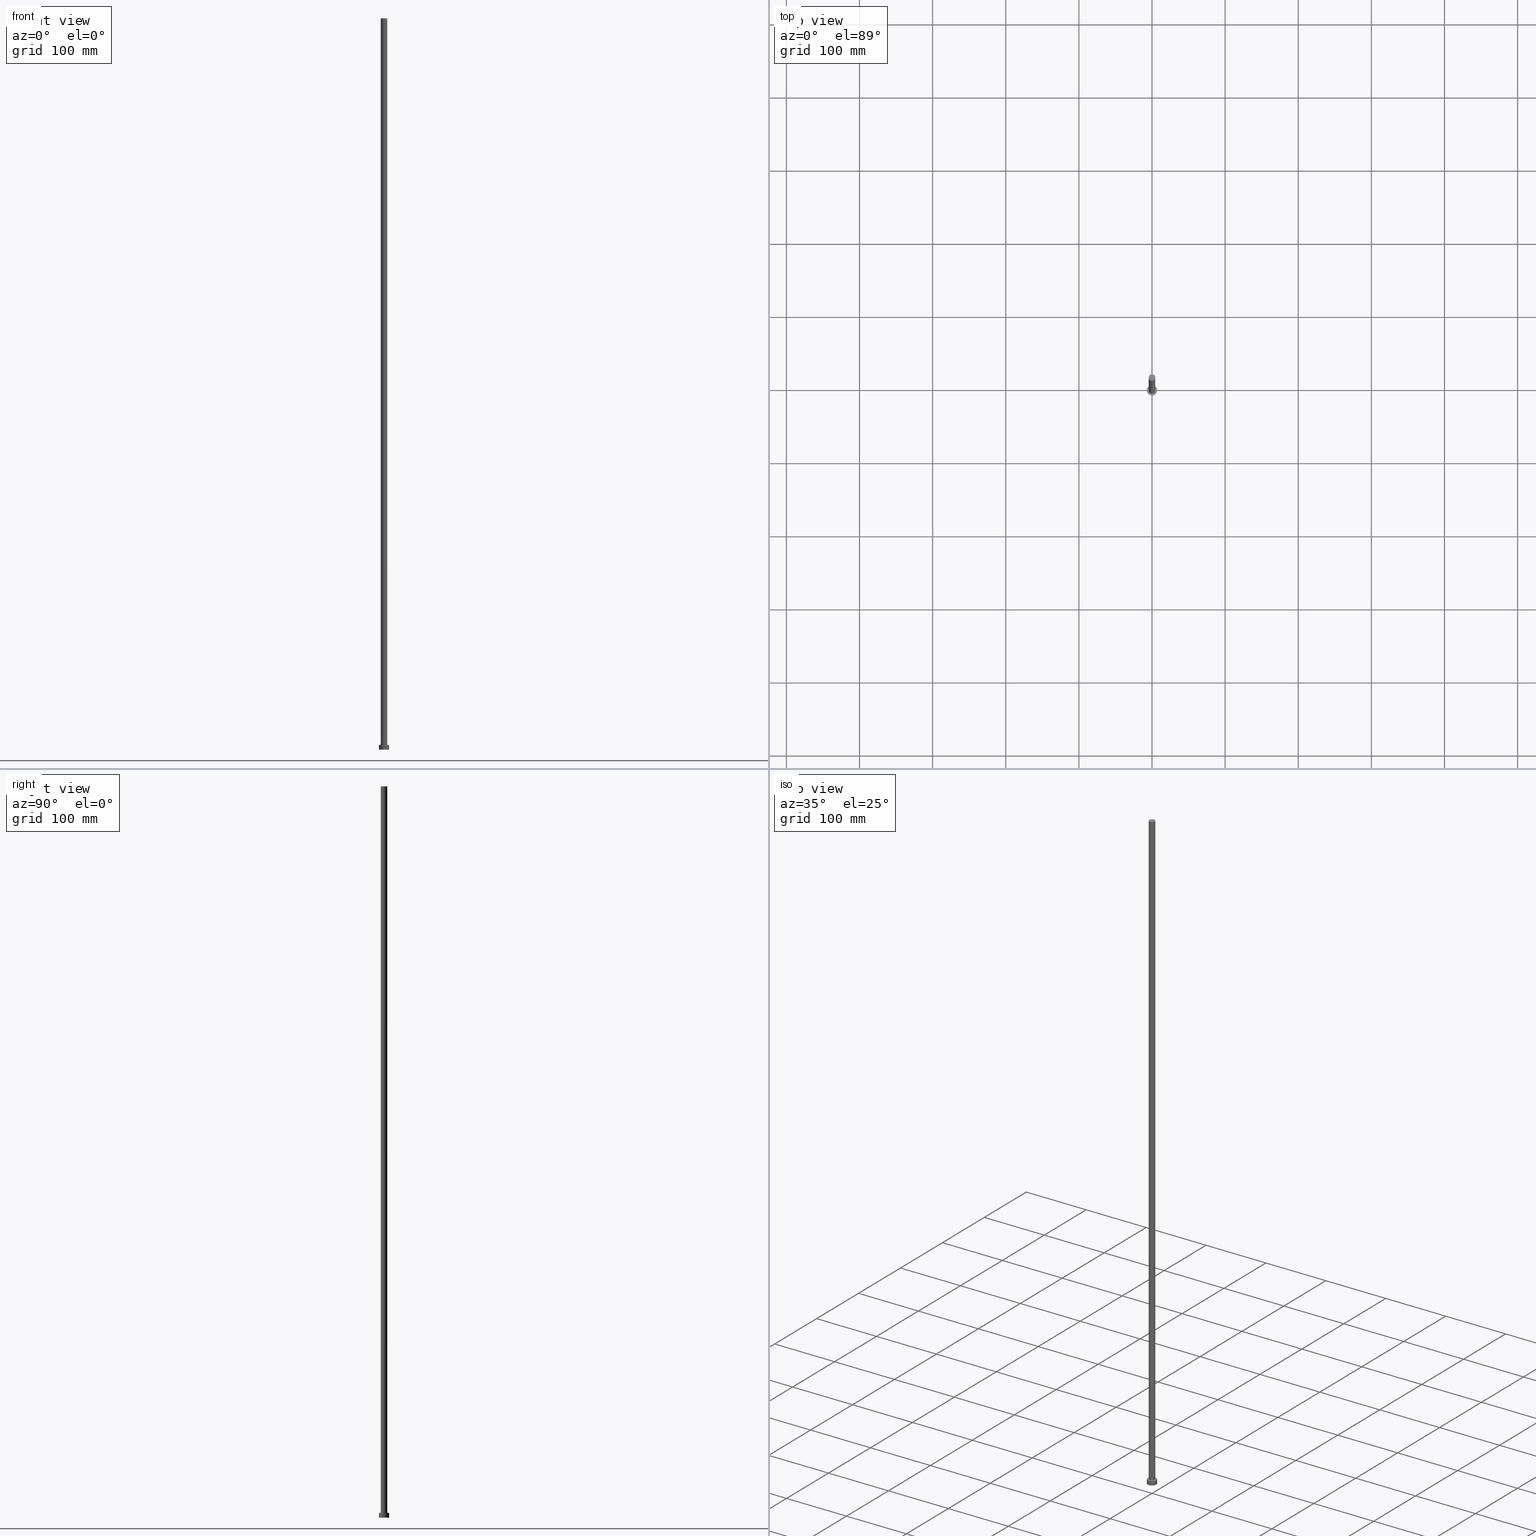
[diagram: canonical four-view strip — front | top / right | iso, engineering-drawing reading convention]
A machine part, canonical four-view strip (front | top / right | iso — engineering-drawing reading convention). The complete STEP part file that produces these views, byte-faithful:
ISO-10303-21;
HEADER;
FILE_DESCRIPTION (( 'STEP AP203' ),
    '1' );
FILE_NAME ('b539.STEP',
    '2023-02-13T13:11:14',
    ( '' ),
    ( '' ),
    'SwSTEP 2.0',
    'SolidWorks 2019',
    '' );
FILE_SCHEMA (( 'CONFIG_CONTROL_DESIGN' ));
ENDSEC;

DATA;
#1 = VERTEX_POINT ( 'NONE', #255 ) ;
#2 = ORIENTED_EDGE ( 'NONE', *, *, #218, .F. ) ;
#3 = CARTESIAN_POINT ( 'NONE',  ( 0.000000000000000000, 0.000000000000000000, 6.500000000000000000 ) ) ;
#4 = CC_DESIGN_DATE_AND_TIME_ASSIGNMENT ( #251, #149, ( #206 ) ) ;
#5 = ORIENTED_EDGE ( 'NONE', *, *, #121, .T. ) ;
#6 = APPROVAL_PERSON_ORGANIZATION ( #106, #110, #14 ) ;
#7 = DIRECTION ( 'NONE',  ( 0.000000000000000000, 0.000000000000000000, 1.000000000000000000 ) ) ;
#8 = ADVANCED_FACE ( 'NONE', ( #217 ), #35, .T. ) ;
#9 = FACE_OUTER_BOUND ( 'NONE', #140, .T. ) ;
#10 = DIRECTION ( 'NONE',  ( -0.000000000000000000, -0.000000000000000000, -1.000000000000000000 ) ) ;
#11 = PERSON ( 'NEUR�EN�', 'NEUR�EN�', 'NEUR�EN�', ('NEUR�EN�'), ('NEUR�EN�'), ('NEUR�EN�') ) ;
#12 = CIRCLE ( 'NONE', #81, 4.500000000000000888 ) ;
#13 = FACE_OUTER_BOUND ( 'NONE', #237, .T. ) ;
#14 = APPROVAL_ROLE ( '' ) ;
#15 = DATE_AND_TIME ( #229, #213 ) ;
#16 = FACE_OUTER_BOUND ( 'NONE', #202, .T. ) ;
#17 = CARTESIAN_POINT ( 'NONE',  ( 0.000000000000000000, 0.000000000000000000, 1000.000000000000000 ) ) ;
#18 = PERSON_AND_ORGANIZATION_ROLE ( 'classification_officer' ) ;
#19 = DIRECTION ( 'NONE',  ( 0.000000000000000000, 0.000000000000000000, 1.000000000000000000 ) ) ;
#20 = CARTESIAN_POINT ( 'NONE',  ( 0.000000000000000000, 0.000000000000000000, 1000.000000000000000 ) ) ;
#21 = COORDINATED_UNIVERSAL_TIME_OFFSET ( 1, 0, .AHEAD. ) ;
#22 = DIRECTION ( 'NONE',  ( -0.000000000000000000, -0.000000000000000000, -1.000000000000000000 ) ) ;
#23 = ORIENTED_EDGE ( 'NONE', *, *, #49, .T. ) ;
#24 = CIRCLE ( 'NONE', #222, 4.500000000000000888 ) ;
#25 = DIRECTION ( 'NONE',  ( 1.000000000000000000, 0.000000000000000000, 0.000000000000000000 ) ) ;
#26 = EDGE_LOOP ( 'NONE', ( #100, #79, #95, #150 ) ) ;
#27 = CC_DESIGN_APPROVAL ( #215, ( #67 ) ) ;
#28 = COORDINATED_UNIVERSAL_TIME_OFFSET ( 1, 0, .AHEAD. ) ;
#29 = DIRECTION ( 'NONE',  ( 0.000000000000000000, 0.000000000000000000, 1.000000000000000000 ) ) ;
#30 = PERSON_AND_ORGANIZATION ( #11, #61 ) ;
#31 = LINE ( 'NONE', #243, #53 ) ;
#32 = AXIS2_PLACEMENT_3D ( 'NONE', #123, #161, #144 ) ;
#33 = CARTESIAN_POINT ( 'NONE',  ( -7.000000000000000000, 0.000000000000000000, 6.500000000000000000 ) ) ;
#34 = FACE_OUTER_BOUND ( 'NONE', #57, .T. ) ;
#35 = CYLINDRICAL_SURFACE ( 'NONE', #200, 7.000000000000000000 ) ;
#36 = AXIS2_PLACEMENT_3D ( 'NONE', #60, #64, #187 ) ;
#37 = DIRECTION ( 'NONE',  ( 0.000000000000000000, 0.000000000000000000, 1.000000000000000000 ) ) ;
#38 = DIRECTION ( 'NONE',  ( 1.000000000000000000, 0.000000000000000000, 0.000000000000000000 ) ) ;
#39 = ORIENTED_EDGE ( 'NONE', *, *, #77, .F. ) ;
#40 = AXIS2_PLACEMENT_3D ( 'NONE', #167, #230, #51 ) ;
#41 = DIRECTION ( 'NONE',  ( 1.000000000000000000, 0.000000000000000000, 0.000000000000000000 ) ) ;
#42 = DESIGN_CONTEXT ( 'detailed design', #120, 'design' ) ;
#43 = PLANE ( 'NONE',  #36 ) ;
#44 = PERSON_AND_ORGANIZATION ( #11, #61 ) ;
#45 = CC_DESIGN_PERSON_AND_ORGANIZATION_ASSIGNMENT ( #194, #165, ( #206 ) ) ;
#46 = DATE_AND_TIME ( #48, #181 ) ;
#47 = CYLINDRICAL_SURFACE ( 'NONE', #32, 4.500000000000000888 ) ;
#48 = CALENDAR_DATE ( 2023, 13, 2 ) ;
#49 = EDGE_CURVE ( 'NONE', #155, #1, #52, .T. ) ;
#50 = APPROVAL_STATUS ( 'not_yet_approved' ) ;
#51 = DIRECTION ( 'NONE',  ( 1.000000000000000000, 0.000000000000000000, 0.000000000000000000 ) ) ;
#52 = CIRCLE ( 'NONE', #153, 7.000000000000000000 ) ;
#53 = VECTOR ( 'NONE', #109, 1000.000000000000000 ) ;
#54 = CARTESIAN_POINT ( 'NONE',  ( 0.000000000000000000, 0.000000000000000000, 1000.000000000000000 ) ) ;
#55 = MANIFOLD_SOLID_BREP ( 'P�idat vysunut�m3', #254 ) ;
#56 = AXIS2_PLACEMENT_3D ( 'NONE', #205, #103, #184 ) ;
#57 = EDGE_LOOP ( 'NONE', ( #180, #234, #82, #179 ) ) ;
#58 = ORIENTED_EDGE ( 'NONE', *, *, #218, .T. ) ;
#59 = ORIENTED_EDGE ( 'NONE', *, *, #154, .F. ) ;
#60 = CARTESIAN_POINT ( 'NONE',  ( 0.000000000000000000, 0.000000000000000000, 0.000000000000000000 ) ) ;
#61 = ORGANIZATION ( 'NEUR�EN�', 'NEUR�EN�', '' ) ;
#62 = CARTESIAN_POINT ( 'NONE',  ( 0.000000000000000000, 0.000000000000000000, 6.500000000000000000 ) ) ;
#63 = APPROVAL_DATE_TIME ( #126, #215 ) ;
#64 = DIRECTION ( 'NONE',  ( 0.000000000000000000, 0.000000000000000000, 1.000000000000000000 ) ) ;
#65 = COORDINATED_UNIVERSAL_TIME_OFFSET ( 1, 0, .AHEAD. ) ;
#66 = CC_DESIGN_PERSON_AND_ORGANIZATION_ASSIGNMENT ( #44, #232, ( #72 ) ) ;
#67 = SECURITY_CLASSIFICATION ( '', '', #208 ) ;
#68 = DIRECTION ( 'NONE',  ( 1.000000000000000000, 0.000000000000000000, -0.000000000000000000 ) ) ;
#69 = DIRECTION ( 'NONE',  ( 1.000000000000000000, 0.000000000000000000, 0.000000000000000000 ) ) ;
#70 = CARTESIAN_POINT ( 'NONE',  ( 0.000000000000000000, 0.000000000000000000, 6.500000000000000000 ) ) ;
#71 = UNCERTAINTY_MEASURE_WITH_UNIT (LENGTH_MEASURE( 1.000000000000000082E-05 ), #74, 'distance_accuracy_value', 'NONE');
#72 = PRODUCT_DEFINITION_FORMATION_WITH_SPECIFIED_SOURCE ( 'LIBOVOLN�', '', #83, .NOT_KNOWN. ) ;
#73 = COORDINATED_UNIVERSAL_TIME_OFFSET ( 1, 0, .AHEAD. ) ;
#74 =( LENGTH_UNIT ( ) NAMED_UNIT ( * ) SI_UNIT ( .MILLI., .METRE. ) );
#75 = CC_DESIGN_PERSON_AND_ORGANIZATION_ASSIGNMENT ( #233, #97, ( #83 ) ) ;
#76 = DATE_AND_TIME ( #247, #209 ) ;
#77 = EDGE_CURVE ( 'NONE', #101, #136, #225, .T. ) ;
#78 = APPLICATION_PROTOCOL_DEFINITION ( 'international standard', 'config_control_design', 1994, #235 ) ;
#79 = ORIENTED_EDGE ( 'NONE', *, *, #121, .F. ) ;
#80 = VERTEX_POINT ( 'NONE', #107 ) ;
#81 = AXIS2_PLACEMENT_3D ( 'NONE', #54, #248, #69 ) ;
#82 = ORIENTED_EDGE ( 'NONE', *, *, #154, .T. ) ;
#83 = PRODUCT ( 'b539', 'b539', '', ( #236 ) ) ;
#84 = AXIS2_PLACEMENT_3D ( 'NONE', #201, #117, #25 ) ;
#85 = PERSON_AND_ORGANIZATION_ROLE ( 'creator' ) ;
#86 = APPROVAL_STATUS ( 'not_yet_approved' ) ;
#87 = CARTESIAN_POINT ( 'NONE',  ( 0.000000000000000000, 0.000000000000000000, 1000.000000000000000 ) ) ;
#88 = CARTESIAN_POINT ( 'NONE',  ( 4.500000000000000888, 5.510910596163089556E-16, 1000.000000000000000 ) ) ;
#89 = CIRCLE ( 'NONE', #56, 7.000000000000000000 ) ;
#90 = DIRECTION ( 'NONE',  ( 0.000000000000000000, 0.000000000000000000, 1.000000000000000000 ) ) ;
#91 = CARTESIAN_POINT ( 'NONE',  ( 4.500000000000000888, 5.510910596163089556E-16, 6.500000000000000000 ) ) ;
#92 = CALENDAR_DATE ( 2023, 13, 2 ) ;
#93 = CIRCLE ( 'NONE', #40, 7.000000000000000000 ) ;
#94 =( NAMED_UNIT ( * ) SI_UNIT ( $, .STERADIAN. ) SOLID_ANGLE_UNIT ( ) );
#95 = ORIENTED_EDGE ( 'NONE', *, *, #132, .T. ) ;
#96 = EDGE_LOOP ( 'NONE', ( #5, #23 ) ) ;
#97 = PERSON_AND_ORGANIZATION_ROLE ( 'design_owner' ) ;
#98 = CC_DESIGN_APPROVAL ( #170, ( #206 ) ) ;
#99 = ORIENTED_EDGE ( 'NONE', *, *, #207, .F. ) ;
#100 = ORIENTED_EDGE ( 'NONE', *, *, #143, .F. ) ;
#101 = VERTEX_POINT ( 'NONE', #146 ) ;
#102 = AXIS2_PLACEMENT_3D ( 'NONE', #124, #29, #41 ) ;
#103 = DIRECTION ( 'NONE',  ( 0.000000000000000000, 0.000000000000000000, 1.000000000000000000 ) ) ;
#104 = FACE_OUTER_BOUND ( 'NONE', #96, .T. ) ;
#105 = VECTOR ( 'NONE', #224, 1000.000000000000000 ) ;
#106 = PERSON_AND_ORGANIZATION ( #11, #61 ) ;
#107 = CARTESIAN_POINT ( 'NONE',  ( -4.500000000000000888, 0.000000000000000000, 1000.000000000000000 ) ) ;
#108 = DATE_TIME_ROLE ( 'classification_date' ) ;
#109 = DIRECTION ( 'NONE',  ( -0.000000000000000000, -0.000000000000000000, -1.000000000000000000 ) ) ;
#110 = APPROVAL ( #188, 'NEUR�EN�' ) ;
#111 = AXIS2_PLACEMENT_3D ( 'NONE', #62, #7, #185 ) ;
#112 = CARTESIAN_POINT ( 'NONE',  ( 0.000000000000000000, 0.000000000000000000, 6.500000000000000000 ) ) ;
#113 = LOCAL_TIME ( 14, 11, 14.00000000000000000, #21 ) ;
#114 = ADVANCED_FACE ( 'NONE', ( #34 ), #245, .T. ) ;
#115 = CARTESIAN_POINT ( 'NONE',  ( 0.000000000000000000, 0.000000000000000000, 6.500000000000000000 ) ) ;
#116 = ORIENTED_EDGE ( 'NONE', *, *, #226, .T. ) ;
#117 = DIRECTION ( 'NONE',  ( 0.000000000000000000, 0.000000000000000000, 1.000000000000000000 ) ) ;
#118 = AXIS2_PLACEMENT_3D ( 'NONE', #151, #37, #133 ) ;
#119 = PRODUCT_RELATED_PRODUCT_CATEGORY ( 'detail', '', ( #83 ) ) ;
#120 = APPLICATION_CONTEXT ( 'configuration controlled 3d designs of mechanical parts and assemblies' ) ;
#121 = EDGE_CURVE ( 'NONE', #1, #155, #196, .T. ) ;
#122 = DIRECTION ( 'NONE',  ( -1.000000000000000000, 0.000000000000000000, 0.000000000000000000 ) ) ;
#123 = CARTESIAN_POINT ( 'NONE',  ( 0.000000000000000000, 0.000000000000000000, 1000.000000000000000 ) ) ;
#124 = CARTESIAN_POINT ( 'NONE',  ( 0.000000000000000000, 0.000000000000000000, 6.500000000000000000 ) ) ;
#125 = AXIS2_PLACEMENT_3D ( 'NONE', #87, #10, #122 ) ;
#126 = DATE_AND_TIME ( #145, #240 ) ;
#127 = LINE ( 'NONE', #227, #105 ) ;
#128 = DIRECTION ( 'NONE',  ( -1.000000000000000000, 0.000000000000000000, 0.000000000000000000 ) ) ;
#129 = CARTESIAN_POINT ( 'NONE',  ( 7.000000000000000000, 8.572527594031471218E-16, 6.500000000000000000 ) ) ;
#130 = CARTESIAN_POINT ( 'NONE',  ( -7.000000000000000000, 0.000000000000000000, 0.000000000000000000 ) ) ;
#131 = DIRECTION ( 'NONE',  ( 0.000000000000000000, 0.000000000000000000, 1.000000000000000000 ) ) ;
#132 = EDGE_CURVE ( 'NONE', #1, #223, #212, .T. ) ;
#133 = DIRECTION ( 'NONE',  ( 1.000000000000000000, 0.000000000000000000, 0.000000000000000000 ) ) ;
#134 = ORIENTED_EDGE ( 'NONE', *, *, #199, .T. ) ;
#135 = APPROVAL_PERSON_ORGANIZATION ( #231, #215, #244 ) ;
#136 = VERTEX_POINT ( 'NONE', #91 ) ;
#137 = ORIENTED_EDGE ( 'NONE', *, *, #226, .F. ) ;
#138 = EDGE_LOOP ( 'NONE', ( #39, #177 ) ) ;
#139 = PRODUCT_DEFINITION_SHAPE ( 'NONE', 'NONE',  #206 ) ;
#140 = EDGE_LOOP ( 'NONE', ( #116, #58 ) ) ;
#141 = APPLICATION_PROTOCOL_DEFINITION ( 'international standard', 'config_control_design', 1994, #120 ) ;
#142 = CIRCLE ( 'NONE', #102, 4.500000000000000888 ) ;
#143 = EDGE_CURVE ( 'NONE', #155, #198, #31, .T. ) ;
#144 = DIRECTION ( 'NONE',  ( -1.000000000000000000, 0.000000000000000000, 0.000000000000000000 ) ) ;
#145 = CALENDAR_DATE ( 2023, 13, 2 ) ;
#146 = CARTESIAN_POINT ( 'NONE',  ( -4.500000000000000888, 0.000000000000000000, 6.500000000000000000 ) ) ;
#147 = PERSON_AND_ORGANIZATION ( #11, #61 ) ;
#148 = DIRECTION ( 'NONE',  ( 1.000000000000000000, 0.000000000000000000, 0.000000000000000000 ) ) ;
#149 = DATE_TIME_ROLE ( 'creation_date' ) ;
#150 = ORIENTED_EDGE ( 'NONE', *, *, #207, .T. ) ;
#151 = CARTESIAN_POINT ( 'NONE',  ( 0.000000000000000000, 0.000000000000000000, 0.000000000000000000 ) ) ;
#152 = VERTEX_POINT ( 'NONE', #88 ) ;
#153 = AXIS2_PLACEMENT_3D ( 'NONE', #3, #131, #38 ) ;
#154 = EDGE_CURVE ( 'NONE', #198, #223, #93, .T. ) ;
#155 = VERTEX_POINT ( 'NONE', #129 ) ;
#156 = CC_DESIGN_DATE_AND_TIME_ASSIGNMENT ( #15, #108, ( #67 ) ) ;
#157 = ADVANCED_FACE ( 'NONE', ( #250, #104 ), #242, .T. ) ;
#158 = ORIENTED_EDGE ( 'NONE', *, *, #199, .F. ) ;
#159 = FACE_OUTER_BOUND ( 'NONE', #214, .T. ) ;
#160 = CARTESIAN_POINT ( 'NONE',  ( -4.500000000000000888, 0.000000000000000000, 1000.000000000000000 ) ) ;
#161 = DIRECTION ( 'NONE',  ( -0.000000000000000000, -0.000000000000000000, -1.000000000000000000 ) ) ;
#162 = SHAPE_DEFINITION_REPRESENTATION ( #139, #220 ) ;
#163 = COORDINATED_UNIVERSAL_TIME_OFFSET ( 1, 0, .AHEAD. ) ;
#164 = CARTESIAN_POINT ( 'NONE',  ( 7.000000000000000000, 8.572527594031471218E-16, 0.000000000000000000 ) ) ;
#165 = PERSON_AND_ORGANIZATION_ROLE ( 'creator' ) ;
#166 = VECTOR ( 'NONE', #228, 1000.000000000000000 ) ;
#167 = CARTESIAN_POINT ( 'NONE',  ( 0.000000000000000000, 0.000000000000000000, 0.000000000000000000 ) ) ;
#168 = EDGE_CURVE ( 'NONE', #136, #101, #142, .T. ) ;
#169 = CC_DESIGN_PERSON_AND_ORGANIZATION_ASSIGNMENT ( #147, #18, ( #67 ) ) ;
#170 = APPROVAL ( #50, 'NEUR�EN�' ) ;
#171 = DIRECTION ( 'NONE',  ( 0.000000000000000000, 0.000000000000000000, 1.000000000000000000 ) ) ;
#172 = AXIS2_PLACEMENT_3D ( 'NONE', #112, #195, #128 ) ;
#173 = DIRECTION ( 'NONE',  ( -0.000000000000000000, -0.000000000000000000, -1.000000000000000000 ) ) ;
#174 = ADVANCED_FACE ( 'NONE', ( #159 ), #43, .F. ) ;
#175 = PERSON_AND_ORGANIZATION ( #11, #61 ) ;
#176 =( GEOMETRIC_REPRESENTATION_CONTEXT ( 3 ) GLOBAL_UNCERTAINTY_ASSIGNED_CONTEXT ( ( #71 ) ) GLOBAL_UNIT_ASSIGNED_CONTEXT ( ( #74, #252, #94 ) ) REPRESENTATION_CONTEXT ( 'NONE', 'WORKASPACE' ) );
#177 = ORIENTED_EDGE ( 'NONE', *, *, #168, .F. ) ;
#178 = DIRECTION ( 'NONE',  ( -1.000000000000000000, 0.000000000000000000, 0.000000000000000000 ) ) ;
#179 = ORIENTED_EDGE ( 'NONE', *, *, #132, .F. ) ;
#180 = ORIENTED_EDGE ( 'NONE', *, *, #49, .F. ) ;
#181 = LOCAL_TIME ( 14, 11, 14.00000000000000000, #163 ) ;
#182 = CC_DESIGN_APPROVAL ( #110, ( #72 ) ) ;
#183 = LINE ( 'NONE', #160, #166 ) ;
#184 = DIRECTION ( 'NONE',  ( 1.000000000000000000, 0.000000000000000000, 0.000000000000000000 ) ) ;
#185 = DIRECTION ( 'NONE',  ( 1.000000000000000000, 0.000000000000000000, -0.000000000000000000 ) ) ;
#186 = AXIS2_PLACEMENT_3D ( 'NONE', #70, #19, #148 ) ;
#187 = DIRECTION ( 'NONE',  ( 1.000000000000000000, 0.000000000000000000, -0.000000000000000000 ) ) ;
#188 = APPROVAL_STATUS ( 'not_yet_approved' ) ;
#189 = EDGE_CURVE ( 'NONE', #80, #101, #183, .T. ) ;
#190 = ADVANCED_FACE ( 'NONE', ( #13 ), #47, .T. ) ;
#191 = APPROVAL_DATE_TIME ( #76, #170 ) ;
#192 = APPROVAL_PERSON_ORGANIZATION ( #175, #170, #249 ) ;
#193 = APPROVAL_DATE_TIME ( #46, #110 ) ;
#194 = PERSON_AND_ORGANIZATION ( #11, #61 ) ;
#195 = DIRECTION ( 'NONE',  ( -0.000000000000000000, -0.000000000000000000, -1.000000000000000000 ) ) ;
#196 = CIRCLE ( 'NONE', #186, 7.000000000000000000 ) ;
#197 = ADVANCED_FACE ( 'NONE', ( #16 ), #238, .T. ) ;
#198 = VERTEX_POINT ( 'NONE', #164 ) ;
#199 = EDGE_CURVE ( 'NONE', #152, #136, #127, .T. ) ;
#200 = AXIS2_PLACEMENT_3D ( 'NONE', #115, #173, #178 ) ;
#201 = CARTESIAN_POINT ( 'NONE',  ( 0.000000000000000000, 0.000000000000000000, 6.500000000000000000 ) ) ;
#202 = EDGE_LOOP ( 'NONE', ( #158, #137, #253, #221 ) ) ;
#203 = ORIENTED_EDGE ( 'NONE', *, *, #168, .T. ) ;
#204 = CC_DESIGN_SECURITY_CLASSIFICATION ( #67, ( #72 ) ) ;
#205 = CARTESIAN_POINT ( 'NONE',  ( 0.000000000000000000, 0.000000000000000000, 0.000000000000000000 ) ) ;
#206 = PRODUCT_DEFINITION ( 'NEZN�M�', '', #72, #42 ) ;
#207 = EDGE_CURVE ( 'NONE', #223, #198, #89, .T. ) ;
#208 = SECURITY_CLASSIFICATION_LEVEL ( 'unclassified' ) ;
#209 = LOCAL_TIME ( 14, 11, 14.00000000000000000, #73 ) ;
#210 = ADVANCED_FACE ( 'NONE', ( #9 ), #239, .T. ) ;
#211 = VECTOR ( 'NONE', #22, 1000.000000000000000 ) ;
#212 = LINE ( 'NONE', #33, #211 ) ;
#213 = LOCAL_TIME ( 14, 11, 14.00000000000000000, #28 ) ;
#214 = EDGE_LOOP ( 'NONE', ( #99, #59 ) ) ;
#215 = APPROVAL ( #86, 'NEUR�EN�' ) ;
#216 = DIRECTION ( 'NONE',  ( 1.000000000000000000, 0.000000000000000000, 0.000000000000000000 ) ) ;
#217 = FACE_OUTER_BOUND ( 'NONE', #26, .T. ) ;
#218 = EDGE_CURVE ( 'NONE', #152, #80, #12, .T. ) ;
#219 = ORIENTED_EDGE ( 'NONE', *, *, #189, .F. ) ;
#220 = ADVANCED_BREP_SHAPE_REPRESENTATION ( 'b539', ( #55, #118 ), #176 ) ;
#221 = ORIENTED_EDGE ( 'NONE', *, *, #77, .T. ) ;
#222 = AXIS2_PLACEMENT_3D ( 'NONE', #20, #171, #216 ) ;
#223 = VERTEX_POINT ( 'NONE', #130 ) ;
#224 = DIRECTION ( 'NONE',  ( -0.000000000000000000, -0.000000000000000000, -1.000000000000000000 ) ) ;
#225 = CIRCLE ( 'NONE', #84, 4.500000000000000888 ) ;
#226 = EDGE_CURVE ( 'NONE', #80, #152, #24, .T. ) ;
#227 = CARTESIAN_POINT ( 'NONE',  ( 4.500000000000000888, 5.510910596163089556E-16, 1000.000000000000000 ) ) ;
#228 = DIRECTION ( 'NONE',  ( -0.000000000000000000, -0.000000000000000000, -1.000000000000000000 ) ) ;
#229 = CALENDAR_DATE ( 2023, 13, 2 ) ;
#230 = DIRECTION ( 'NONE',  ( 0.000000000000000000, 0.000000000000000000, 1.000000000000000000 ) ) ;
#231 = PERSON_AND_ORGANIZATION ( #11, #61 ) ;
#232 = PERSON_AND_ORGANIZATION_ROLE ( 'design_supplier' ) ;
#233 = PERSON_AND_ORGANIZATION ( #11, #61 ) ;
#234 = ORIENTED_EDGE ( 'NONE', *, *, #143, .T. ) ;
#235 = APPLICATION_CONTEXT ( 'configuration controlled 3d designs of mechanical parts and assemblies' ) ;
#236 = MECHANICAL_CONTEXT ( 'NONE', #235, 'mechanical' ) ;
#237 = EDGE_LOOP ( 'NONE', ( #2, #134, #203, #219 ) ) ;
#238 = CYLINDRICAL_SURFACE ( 'NONE', #125, 4.500000000000000888 ) ;
#239 = PLANE ( 'NONE',  #246 ) ;
#240 = LOCAL_TIME ( 14, 11, 14.00000000000000000, #65 ) ;
#241 = CC_DESIGN_PERSON_AND_ORGANIZATION_ASSIGNMENT ( #30, #85, ( #72 ) ) ;
#242 = PLANE ( 'NONE',  #111 ) ;
#243 = CARTESIAN_POINT ( 'NONE',  ( 7.000000000000000000, 8.572527594031471218E-16, 6.500000000000000000 ) ) ;
#244 = APPROVAL_ROLE ( '' ) ;
#245 = CYLINDRICAL_SURFACE ( 'NONE', #172, 7.000000000000000000 ) ;
#246 = AXIS2_PLACEMENT_3D ( 'NONE', #17, #90, #68 ) ;
#247 = CALENDAR_DATE ( 2023, 13, 2 ) ;
#248 = DIRECTION ( 'NONE',  ( 0.000000000000000000, 0.000000000000000000, 1.000000000000000000 ) ) ;
#249 = APPROVAL_ROLE ( '' ) ;
#250 = FACE_BOUND ( 'NONE', #138, .T. ) ;
#251 = DATE_AND_TIME ( #92, #113 ) ;
#252 =( NAMED_UNIT ( * ) PLANE_ANGLE_UNIT ( ) SI_UNIT ( $, .RADIAN. ) );
#253 = ORIENTED_EDGE ( 'NONE', *, *, #189, .T. ) ;
#254 = CLOSED_SHELL ( 'NONE', ( #190, #114, #8, #157, #174, #197, #210 ) ) ;
#255 = CARTESIAN_POINT ( 'NONE',  ( -7.000000000000000000, 0.000000000000000000, 6.500000000000000000 ) ) ;
ENDSEC;
END-ISO-10303-21;
